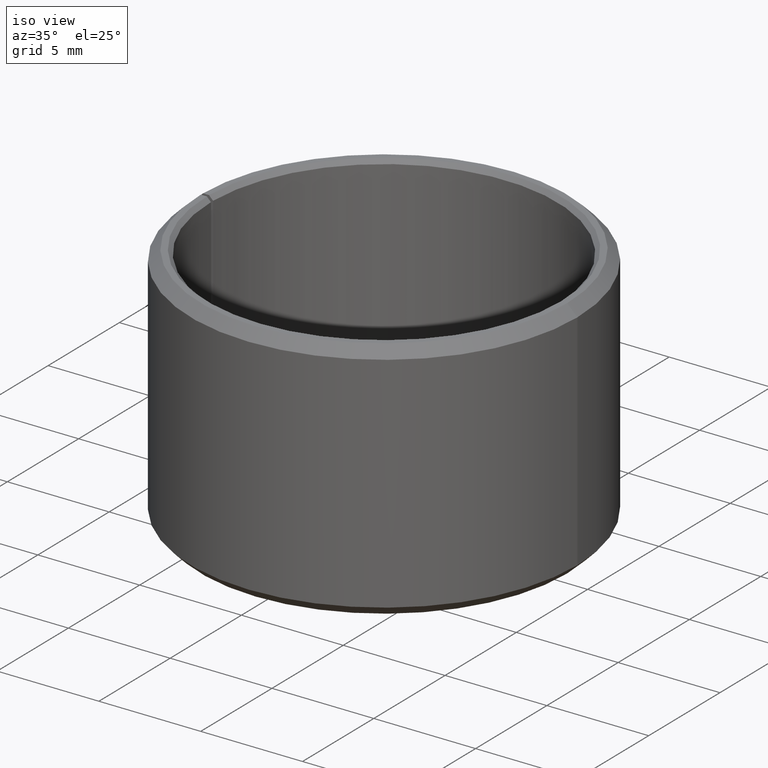
[diagram: clean part render]
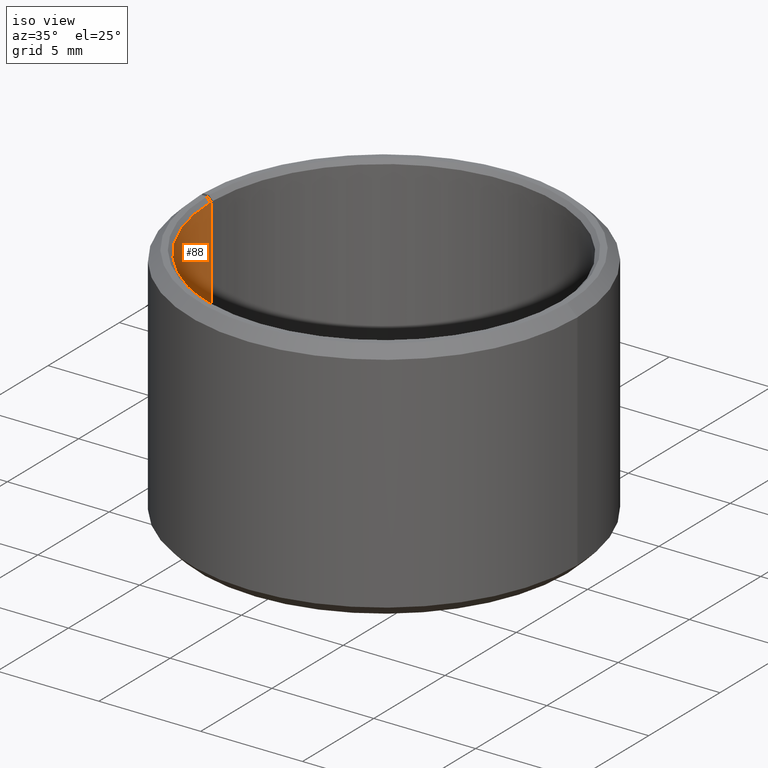
[diagram: same view with one face highlighted and labeled with its STEP entity id]
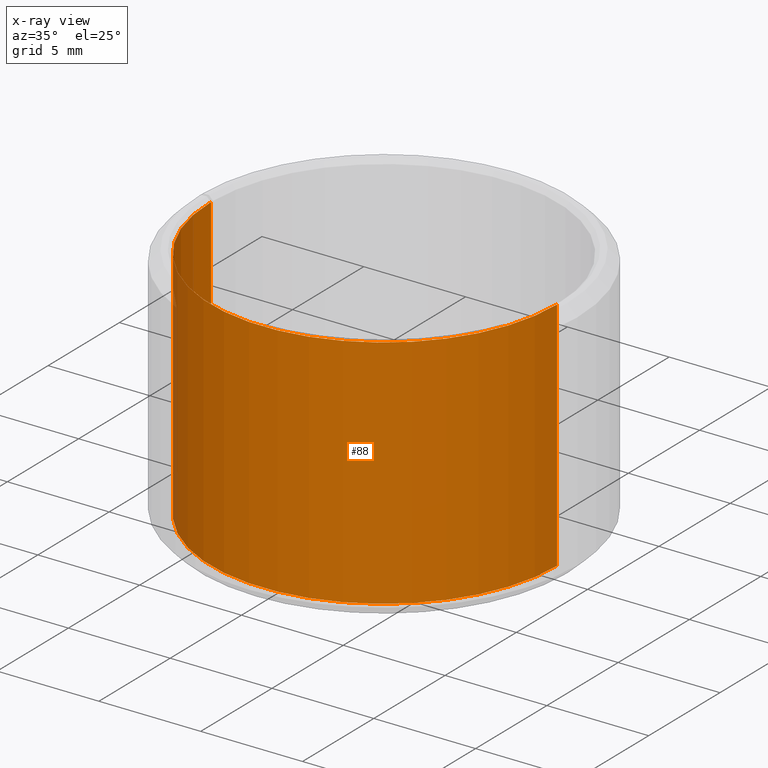
[diagram: x-ray of the same camera — body ghosted, the highlighted face saturated]
A machine part, iso view. The second image highlights one B-rep face of the part: STEP entity #88.
The next image is the same camera in x-ray: the body ghosted, the highlighted face saturated — about 1% of this face is hidden behind the body in this view.
In plain terms, the highlighted cylindrical surface (partial cylindrical patch) has radius 8.5 mm, axis along (0, -0, 1).
Its self-contained STEP definition (entity closure, byte-faithful):
#88=ADVANCED_FACE('',(#118),#119,.F.);
#118=FACE_OUTER_BOUND('',#150,.T.);
#119=CYLINDRICAL_SURFACE('',#151,8.5);
#150=EDGE_LOOP('',(#251,#252,#253,#254));
#151=AXIS2_PLACEMENT_3D('',#255,#256,#257);
#251=ORIENTED_EDGE('',*,*,#280,.T.);
#252=ORIENTED_EDGE('',*,*,#302,.F.);
#253=ORIENTED_EDGE('',*,*,#317,.F.);
#254=ORIENTED_EDGE('',*,*,#315,.T.);
#255=CARTESIAN_POINT('',(4.75577053673603E-015,-6.27163115378842E-015,6.0));
#256=DIRECTION('',(5.48707263966372E-016,-6.09939603923743E-016,1.0));
#257=DIRECTION('',(-1.0,-3.21624529935327E-016,5.48707263966372E-016));
#280=EDGE_CURVE('',#318,#319,#320,.T.);
#302=EDGE_CURVE('',#356,#319,#358,.T.);
#315=EDGE_CURVE('',#376,#318,#377,.T.);
#317=EDGE_CURVE('',#376,#356,#379,.T.);
#318=VERTEX_POINT('',#380);
#319=VERTEX_POINT('',#381);
#320=LINE('',#382,#383);
#356=VERTEX_POINT('',#430);
#358=CIRCLE('',#433,8.5);
#376=VERTEX_POINT('',#458);
#377=CIRCLE('',#459,8.5);
#379=LINE('',#462,#463);
#380=CARTESIAN_POINT('',(8.50000000000001,-7.75515132562262E-015,11.8));
#381=CARTESIAN_POINT('',(8.5,-2.92170506978989E-016,0.199999999999998));
#382=CARTESIAN_POINT('',(8.50000000000001,-4.57877242861338E-015,6.0));
#383=VECTOR('',#464,1.0);
#430=CARTESIAN_POINT('',(-8.5,-4.67807787993362E-015,0.200000000000007));
#433=AXIS2_PLACEMENT_3D('',#504,#505,#506);
#458=CARTESIAN_POINT('',(-8.49999999999999,-1.21533051665687E-014,11.8));
#459=AXIS2_PLACEMENT_3D('',#529,#530,#531);
#462=CARTESIAN_POINT('',(-8.49999999999999,-1.21533051665687E-014,11.8));
#463=VECTOR('',#533,10.0);
#464=DIRECTION('',(-5.48707263966372E-016,6.09939603923743E-016,-1.0));
#504=CARTESIAN_POINT('',(1.57326840573107E-015,-1.97890599815829E-015,0.200000000000002));
#505=DIRECTION('',(5.48707263966372E-016,-6.09939603923743E-016,1.0));
#506=DIRECTION('',(-1.0,-3.21624529935327E-016,5.48707263966372E-016));
#529=CARTESIAN_POINT('',(7.938272667741E-015,-9.45413328479339E-015,11.8));
#530=DIRECTION('',(5.48707263966372E-016,-6.09939603923743E-016,1.0));
#531=DIRECTION('',(-1.0,-3.21624529935327E-016,5.48707263966372E-016));
#533=DIRECTION('',(-5.48707263966372E-016,6.44416145399578E-016,-1.0));